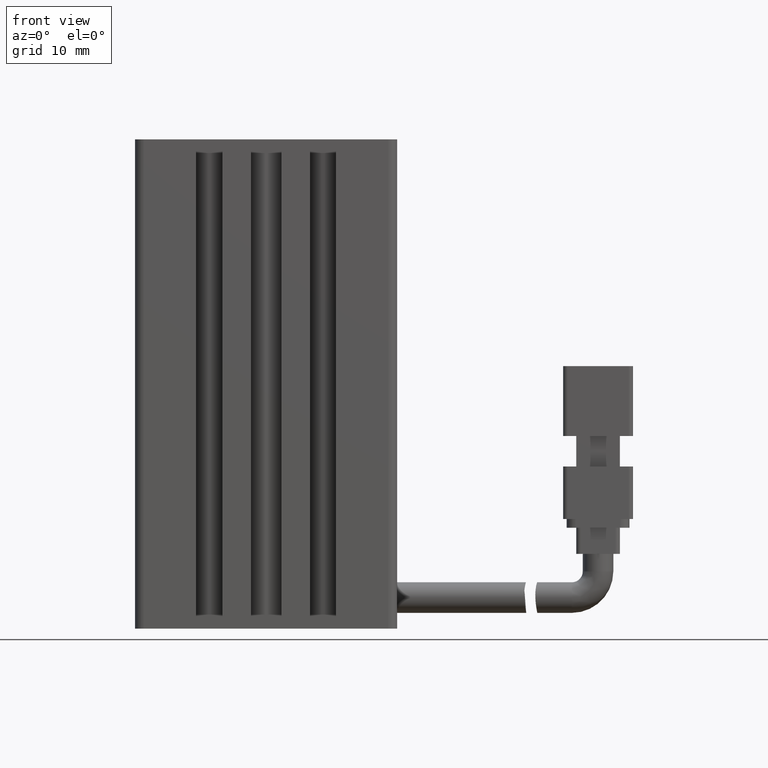
[diagram: clean part render]
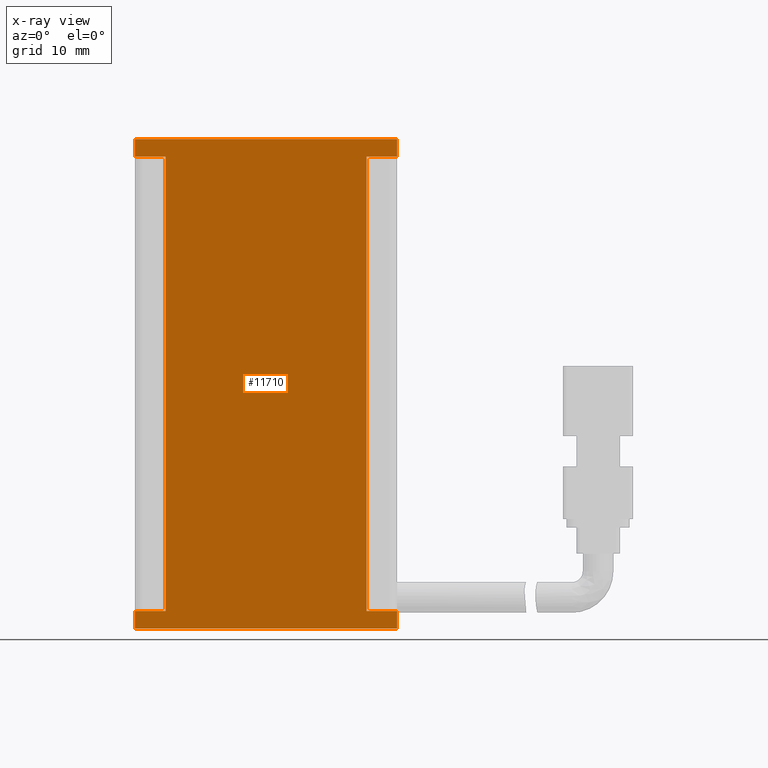
[diagram: x-ray — body ghosted, one internal face saturated and labeled with its STEP entity id]
A machine part, front view, then the same camera in x-ray: the body is ghosted and one INTERNAL B-rep face — a face not visible from any outside direction — is saturated and labeled: STEP entity #11710.
In plain terms, the highlighted planar face has unit normal (0, -1, 0).
Its self-contained STEP definition (entity closure, byte-faithful):
#182 = ORIENTED_EDGE ( 'NONE', *, *, #10865, .F. ) ;
#222 = VECTOR ( 'NONE', #17810, 1000.000000000000000 ) ;
#604 = LINE ( 'NONE', #8180, #20754 ) ;
#799 = FACE_OUTER_BOUND ( 'NONE', #21643, .T. ) ;
#919 = ORIENTED_EDGE ( 'NONE', *, *, #10753, .F. ) ;
#1593 = ORIENTED_EDGE ( 'NONE', *, *, #10594, .F. ) ;
#2014 = CARTESIAN_POINT ( 'NONE',  ( 55.92537974683543200, 19.19594479660386500, -87.00000000000001400 ) ) ;
#2415 = ORIENTED_EDGE ( 'NONE', *, *, #10481, .F. ) ;
#2435 = CARTESIAN_POINT ( 'NONE',  ( 40.92537974683542500, 19.19594479660386500, -143.0000000000000300 ) ) ;
#2776 = VECTOR ( 'NONE', #18666, 1000.000000000000000 ) ;
#3114 = CARTESIAN_POINT ( 'NONE',  ( 40.92537974683542500, 19.19594479660386500, -87.00000000000001400 ) ) ;
#3640 = CARTESIAN_POINT ( 'NONE',  ( 25.92537974683541800, 19.19594479660386500, -87.00000000000001400 ) ) ;
#3768 = CARTESIAN_POINT ( 'NONE',  ( 52.42537974683542500, 19.19594479660386500, -87.00000000000001400 ) ) ;
#3986 = CARTESIAN_POINT ( 'NONE',  ( 52.42537974683541800, 19.19594479660386500, -89.00000000000000000 ) ) ;
#4558 = CARTESIAN_POINT ( 'NONE',  ( 55.92537974683543200, 19.19594479660386500, -87.00000000000001400 ) ) ;
#4741 = VECTOR ( 'NONE', #15429, 1000.000000000000000 ) ;
#4847 = CARTESIAN_POINT ( 'NONE',  ( 25.92537974683541800, 19.19594479660386500, -87.00000000000001400 ) ) ;
#4885 = CARTESIAN_POINT ( 'NONE',  ( 25.92537974683541800, 19.19594479660386500, -141.0000000000000000 ) ) ;
#5063 = LINE ( 'NONE', #2435, #10264 ) ;
#5286 = LINE ( 'NONE', #24993, #25059 ) ;
#5598 = DIRECTION ( 'NONE',  ( 0.0000000000000000000, -0.0000000000000000000, -1.000000000000000000 ) ) ;
#5808 = DIRECTION ( 'NONE',  ( -0.0000000000000000000, 0.0000000000000000000, 1.000000000000000000 ) ) ;
#5908 = VECTOR ( 'NONE', #20093, 1000.000000000000000 ) ;
#6006 = VECTOR ( 'NONE', #20421, 1000.000000000000000 ) ;
#6592 = DIRECTION ( 'NONE',  ( -0.0000000000000000000, 0.0000000000000000000, 1.000000000000000000 ) ) ;
#6645 = CARTESIAN_POINT ( 'NONE',  ( 29.42537974683542100, 19.19594479660386500, -87.00000000000001400 ) ) ;
#6961 = CARTESIAN_POINT ( 'NONE',  ( 40.92537974683542500, 19.19594479660386500, -141.0000000000000000 ) ) ;
#7319 = CARTESIAN_POINT ( 'NONE',  ( 40.92537974683542500, 19.19594479660386500, -87.00000000000001400 ) ) ;
#7509 = LINE ( 'NONE', #3768, #22276 ) ;
#8180 = CARTESIAN_POINT ( 'NONE',  ( 40.92537974683542500, 19.19594479660386500, -89.00000000000000000 ) ) ;
#8212 = AXIS2_PLACEMENT_3D ( 'NONE', #7319, #20797, #9274 ) ;
#8708 = LINE ( 'NONE', #24301, #23352 ) ;
#9274 = DIRECTION ( 'NONE',  ( 0.0000000000000000000, -0.0000000000000000000, -1.000000000000000000 ) ) ;
#9705 = EDGE_CURVE ( 'NONE', #15719, #16215, #20778, .T. ) ;
#10160 = EDGE_CURVE ( 'NONE', #14149, #14362, #5063, .T. ) ;
#10261 = ORIENTED_EDGE ( 'NONE', *, *, #10315, .F. ) ;
#10264 = VECTOR ( 'NONE', #18018, 1000.000000000000000 ) ;
#10308 = EDGE_CURVE ( 'NONE', #16912, #15577, #12669, .T. ) ;
#10315 = EDGE_CURVE ( 'NONE', #15577, #18241, #7509, .T. ) ;
#10465 = CARTESIAN_POINT ( 'NONE',  ( 55.92537974683543200, 19.19594479660386500, -89.00000000000000000 ) ) ;
#10481 = EDGE_CURVE ( 'NONE', #18241, #18967, #604, .T. ) ;
#10594 = EDGE_CURVE ( 'NONE', #18967, #17067, #23371, .T. ) ;
#10749 = EDGE_CURVE ( 'NONE', #14362, #16912, #8708, .T. ) ;
#10753 = EDGE_CURVE ( 'NONE', #17067, #13096, #13202, .T. ) ;
#10865 = EDGE_CURVE ( 'NONE', #13096, #17450, #13509, .T. ) ;
#10950 = EDGE_CURVE ( 'NONE', #16215, #14149, #5286, .T. ) ;
#10998 = ORIENTED_EDGE ( 'NONE', *, *, #10308, .F. ) ;
#11050 = EDGE_CURVE ( 'NONE', #17450, #19027, #15890, .T. ) ;
#11168 = EDGE_CURVE ( 'NONE', #19027, #15719, #20675, .T. ) ;
#11710 = ADVANCED_FACE ( 'NONE', ( #799 ), #24455, .F. ) ;
#11765 = ORIENTED_EDGE ( 'NONE', *, *, #10749, .F. ) ;
#12597 = ORIENTED_EDGE ( 'NONE', *, *, #10160, .F. ) ;
#12669 = LINE ( 'NONE', #23027, #4741 ) ;
#13096 = VERTEX_POINT ( 'NONE', #4847 ) ;
#13202 = LINE ( 'NONE', #3114, #2776 ) ;
#13227 = VECTOR ( 'NONE', #6592, 1000.000000000000000 ) ;
#13509 = LINE ( 'NONE', #3640, #23641 ) ;
#14149 = VERTEX_POINT ( 'NONE', #19371 ) ;
#14362 = VERTEX_POINT ( 'NONE', #14408 ) ;
#14408 = CARTESIAN_POINT ( 'NONE',  ( 55.92537974683543200, 19.19594479660386500, -143.0000000000000300 ) ) ;
#14601 = CARTESIAN_POINT ( 'NONE',  ( 29.42537974683542100, 19.19594479660386500, -89.00000000000000000 ) ) ;
#14829 = DIRECTION ( 'NONE',  ( -0.0000000000000000000, 0.0000000000000000000, 1.000000000000000000 ) ) ;
#15266 = ORIENTED_EDGE ( 'NONE', *, *, #11050, .F. ) ;
#15429 = DIRECTION ( 'NONE',  ( -1.000000000000000000, -0.0000000000000000000, -0.0000000000000000000 ) ) ;
#15577 = VERTEX_POINT ( 'NONE', #22077 ) ;
#15719 = VERTEX_POINT ( 'NONE', #20877 ) ;
#15726 = CARTESIAN_POINT ( 'NONE',  ( 40.92537974683542500, 19.19594479660386500, -89.00000000000000000 ) ) ;
#15890 = LINE ( 'NONE', #15726, #222 ) ;
#16215 = VERTEX_POINT ( 'NONE', #4885 ) ;
#16912 = VERTEX_POINT ( 'NONE', #24673 ) ;
#17022 = CARTESIAN_POINT ( 'NONE',  ( 25.92537974683541800, 19.19594479660386500, -89.00000000000000000 ) ) ;
#17067 = VERTEX_POINT ( 'NONE', #2014 ) ;
#17450 = VERTEX_POINT ( 'NONE', #17022 ) ;
#17810 = DIRECTION ( 'NONE',  ( 1.000000000000000000, 0.0000000000000000000, 0.0000000000000000000 ) ) ;
#18018 = DIRECTION ( 'NONE',  ( 1.000000000000000000, 0.0000000000000000000, 0.0000000000000000000 ) ) ;
#18241 = VERTEX_POINT ( 'NONE', #3986 ) ;
#18666 = DIRECTION ( 'NONE',  ( -1.000000000000000000, -0.0000000000000000000, -0.0000000000000000000 ) ) ;
#18967 = VERTEX_POINT ( 'NONE', #10465 ) ;
#19027 = VERTEX_POINT ( 'NONE', #14601 ) ;
#19371 = CARTESIAN_POINT ( 'NONE',  ( 25.92537974683541800, 19.19594479660386500, -143.0000000000000300 ) ) ;
#20093 = DIRECTION ( 'NONE',  ( 0.0000000000000000000, -0.0000000000000000000, -1.000000000000000000 ) ) ;
#20421 = DIRECTION ( 'NONE',  ( -1.000000000000000000, -0.0000000000000000000, -0.0000000000000000000 ) ) ;
#20675 = LINE ( 'NONE', #6645, #5908 ) ;
#20754 = VECTOR ( 'NONE', #23504, 1000.000000000000000 ) ;
#20778 = LINE ( 'NONE', #6961, #6006 ) ;
#20797 = DIRECTION ( 'NONE',  ( 0.0000000000000000000, -1.000000000000000000, 0.0000000000000000000 ) ) ;
#20877 = CARTESIAN_POINT ( 'NONE',  ( 29.42537974683542100, 19.19594479660386500, -141.0000000000000000 ) ) ;
#20905 = ORIENTED_EDGE ( 'NONE', *, *, #10950, .F. ) ;
#21296 = DIRECTION ( 'NONE',  ( 0.0000000000000000000, -0.0000000000000000000, -1.000000000000000000 ) ) ;
#21565 = ORIENTED_EDGE ( 'NONE', *, *, #9705, .F. ) ;
#21643 = EDGE_LOOP ( 'NONE', ( #15266, #182, #919, #1593, #2415, #10261, #10998, #11765, #12597, #20905, #21565, #22199 ) ) ;
#22077 = CARTESIAN_POINT ( 'NONE',  ( 52.42537974683541800, 19.19594479660386500, -141.0000000000000000 ) ) ;
#22199 = ORIENTED_EDGE ( 'NONE', *, *, #11168, .F. ) ;
#22276 = VECTOR ( 'NONE', #5808, 1000.000000000000000 ) ;
#23027 = CARTESIAN_POINT ( 'NONE',  ( 40.92537974683542500, 19.19594479660386500, -141.0000000000000000 ) ) ;
#23352 = VECTOR ( 'NONE', #14829, 1000.000000000000000 ) ;
#23371 = LINE ( 'NONE', #4558, #13227 ) ;
#23504 = DIRECTION ( 'NONE',  ( 1.000000000000000000, 0.0000000000000000000, 0.0000000000000000000 ) ) ;
#23641 = VECTOR ( 'NONE', #5598, 1000.000000000000000 ) ;
#24301 = CARTESIAN_POINT ( 'NONE',  ( 55.92537974683543200, 19.19594479660386500, -87.00000000000001400 ) ) ;
#24455 = PLANE ( 'NONE',  #8212 ) ;
#24673 = CARTESIAN_POINT ( 'NONE',  ( 55.92537974683543200, 19.19594479660386500, -141.0000000000000000 ) ) ;
#24993 = CARTESIAN_POINT ( 'NONE',  ( 25.92537974683542100, 19.19594479660386500, -87.00000000000001400 ) ) ;
#25059 = VECTOR ( 'NONE', #21296, 1000.000000000000000 ) ;